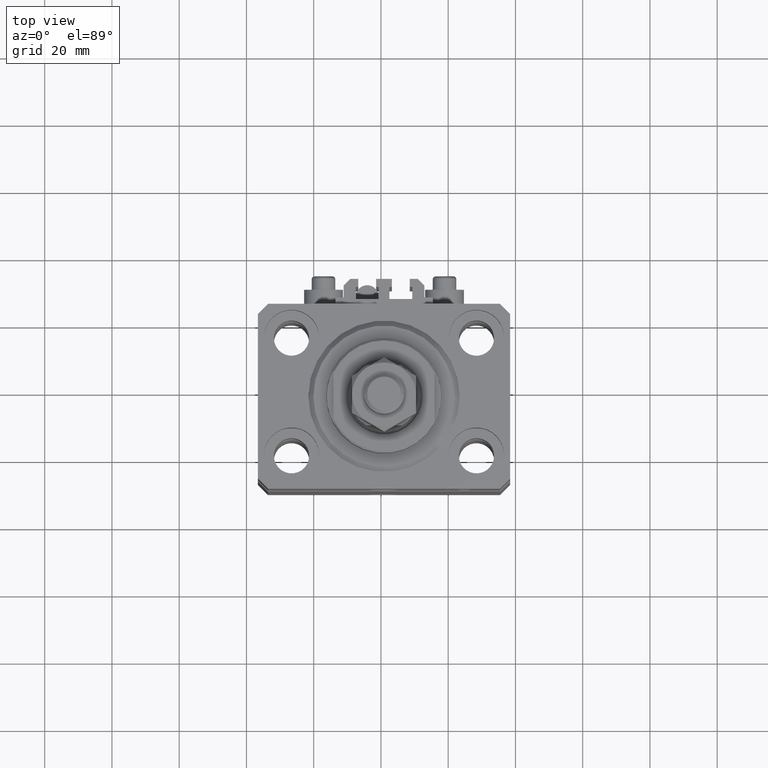
[diagram: clean part render]
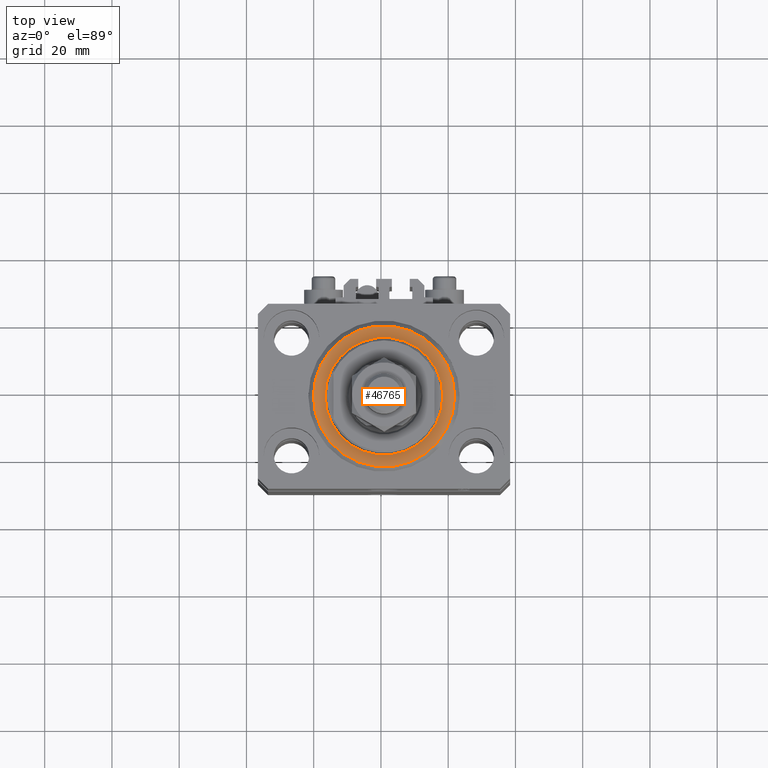
[diagram: same view with one face highlighted and labeled with its STEP entity id]
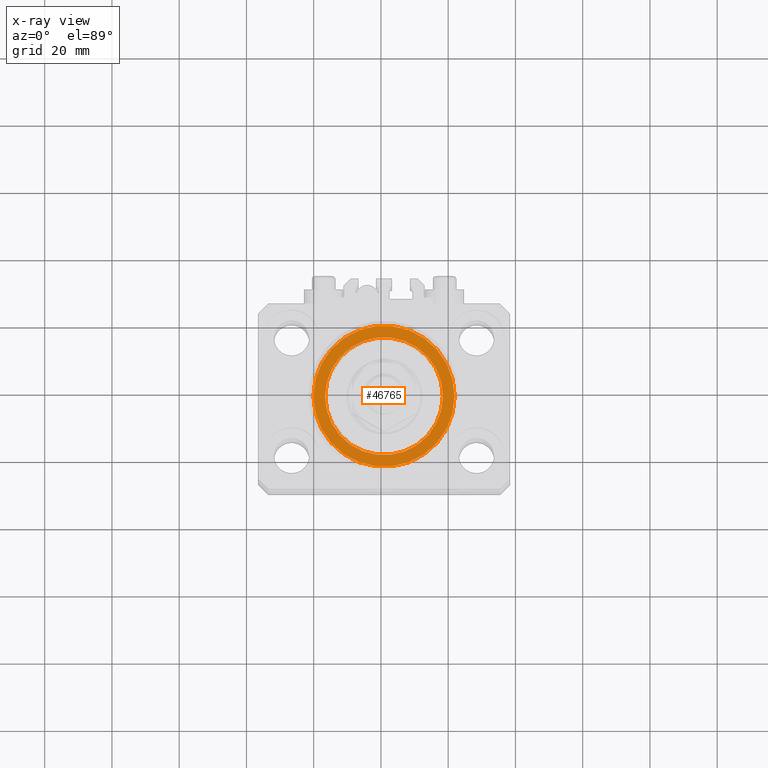
[diagram: x-ray of the same camera — body ghosted, the highlighted face saturated]
A machine part, top view. The second image highlights one B-rep face of the part: STEP entity #46765.
The next image is the same camera in x-ray: the body ghosted, the highlighted face saturated — about 0% of this face is hidden behind the body in this view.
In plain terms, the highlighted planar face has unit normal (0, 0, -1).
Its self-contained STEP definition (entity closure, byte-faithful):
#155 = FACE_OUTER_BOUND ( 'NONE', #26913, .T. ) ;
#847 = ORIENTED_EDGE ( 'NONE', *, *, #37838, .T. ) ;
#2383 = CARTESIAN_POINT ( 'NONE',  ( 0.000000000000000000, 0.000000000000000000, 0.000000000000000000 ) ) ;
#3723 = ORIENTED_EDGE ( 'NONE', *, *, #15783, .T. ) ;
#5625 = AXIS2_PLACEMENT_3D ( 'NONE', #38682, #26763, #19784 ) ;
#7702 = AXIS2_PLACEMENT_3D ( 'NONE', #22516, #37682, #40906 ) ;
#8626 = CIRCLE ( 'NONE', #19725, 20.99999999999995381 ) ;
#9973 = DIRECTION ( 'NONE',  ( 1.000000000000000000, 0.000000000000000000, 0.000000000000000000 ) ) ;
#13703 = DIRECTION ( 'NONE',  ( 0.000000000000000000, 0.000000000000000000, 1.000000000000000000 ) ) ;
#14628 = DIRECTION ( 'NONE',  ( -0.000000000000000000, -0.000000000000000000, -1.000000000000000000 ) ) ;
#15324 = PLANE ( 'NONE',  #5625 ) ;
#15783 = EDGE_CURVE ( 'NONE', #18157, #38605, #28374, .T. ) ;
#17421 = CARTESIAN_POINT ( 'NONE',  ( 0.000000000000000000, 0.000000000000000000, 0.000000000000000000 ) ) ;
#18157 = VERTEX_POINT ( 'NONE', #33794 ) ;
#18199 = ORIENTED_EDGE ( 'NONE', *, *, #37584, .T. ) ;
#18829 = AXIS2_PLACEMENT_3D ( 'NONE', #17421, #13703, #9973 ) ;
#19725 = AXIS2_PLACEMENT_3D ( 'NONE', #22837, #14628, #26568 ) ;
#19784 = DIRECTION ( 'NONE',  ( 1.000000000000000000, 0.000000000000000000, -0.000000000000000000 ) ) ;
#21026 = DIRECTION ( 'NONE',  ( 0.000000000000000000, 0.000000000000000000, 1.000000000000000000 ) ) ;
#21726 = CARTESIAN_POINT ( 'NONE',  ( -17.50000000000000000, 2.143131898507868643E-15, -2.168404344971008868E-16 ) ) ;
#22516 = CARTESIAN_POINT ( 'NONE',  ( 0.000000000000000000, 0.000000000000000000, 0.000000000000000000 ) ) ;
#22739 = VERTEX_POINT ( 'NONE', #39984 ) ;
#22837 = CARTESIAN_POINT ( 'NONE',  ( 0.000000000000000000, 0.000000000000000000, 0.000000000000000000 ) ) ;
#24728 = CARTESIAN_POINT ( 'NONE',  ( -20.99999999999995381, 2.663606788145490261E-15, 0.000000000000000000 ) ) ;
#26568 = DIRECTION ( 'NONE',  ( 1.000000000000000000, 0.000000000000000000, 0.000000000000000000 ) ) ;
#26763 = DIRECTION ( 'NONE',  ( 0.000000000000000000, 0.000000000000000000, 1.000000000000000000 ) ) ;
#26796 = CIRCLE ( 'NONE', #18829, 17.50000000000000000 ) ;
#26913 = EDGE_LOOP ( 'NONE', ( #18199, #44570 ) ) ;
#28374 = CIRCLE ( 'NONE', #39526, 17.50000000000000000 ) ;
#33071 = CIRCLE ( 'NONE', #7702, 20.99999999999995381 ) ;
#33794 = CARTESIAN_POINT ( 'NONE',  ( 17.50000000000000000, 0.000000000000000000, -2.168404344971008868E-16 ) ) ;
#37584 = EDGE_CURVE ( 'NONE', #22739, #39909, #33071, .T. ) ;
#37682 = DIRECTION ( 'NONE',  ( -0.000000000000000000, -0.000000000000000000, -1.000000000000000000 ) ) ;
#37838 = EDGE_CURVE ( 'NONE', #38605, #18157, #26796, .T. ) ;
#38442 = FACE_BOUND ( 'NONE', #45569, .T. ) ;
#38605 = VERTEX_POINT ( 'NONE', #21726 ) ;
#38682 = CARTESIAN_POINT ( 'NONE',  ( 0.000000000000000000, 0.000000000000000000, 0.000000000000000000 ) ) ;
#39526 = AXIS2_PLACEMENT_3D ( 'NONE', #2383, #21026, #40410 ) ;
#39909 = VERTEX_POINT ( 'NONE', #24728 ) ;
#39984 = CARTESIAN_POINT ( 'NONE',  ( 20.99999999999995381, 0.000000000000000000, 0.000000000000000000 ) ) ;
#40410 = DIRECTION ( 'NONE',  ( 1.000000000000000000, 0.000000000000000000, 0.000000000000000000 ) ) ;
#40906 = DIRECTION ( 'NONE',  ( 1.000000000000000000, 0.000000000000000000, 0.000000000000000000 ) ) ;
#41884 = EDGE_CURVE ( 'NONE', #39909, #22739, #8626, .T. ) ;
#44570 = ORIENTED_EDGE ( 'NONE', *, *, #41884, .T. ) ;
#45569 = EDGE_LOOP ( 'NONE', ( #3723, #847 ) ) ;
#46765 = ADVANCED_FACE ( 'NONE', ( #38442, #155 ), #15324, .F. ) ;